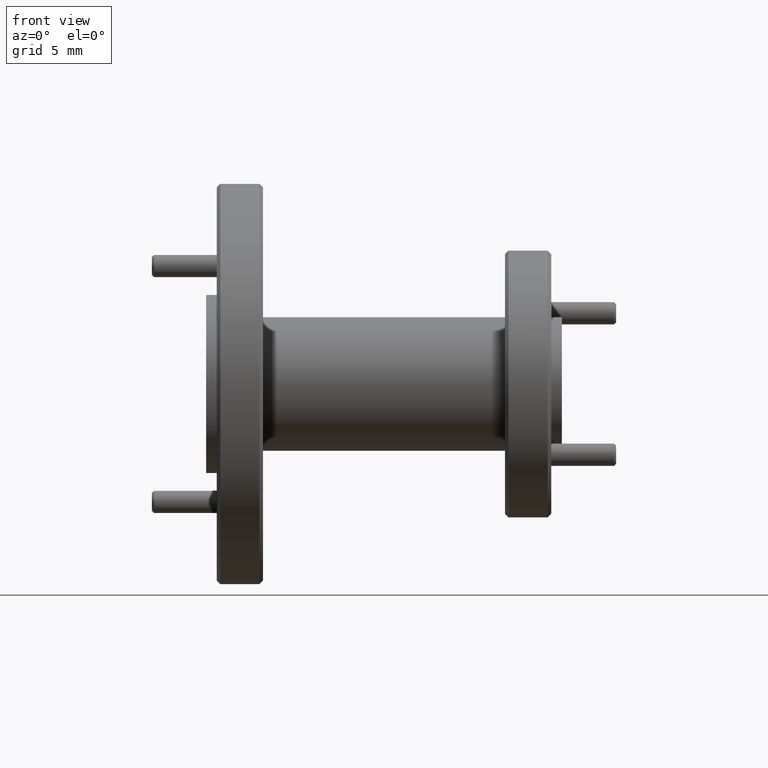
[diagram: clean part render]
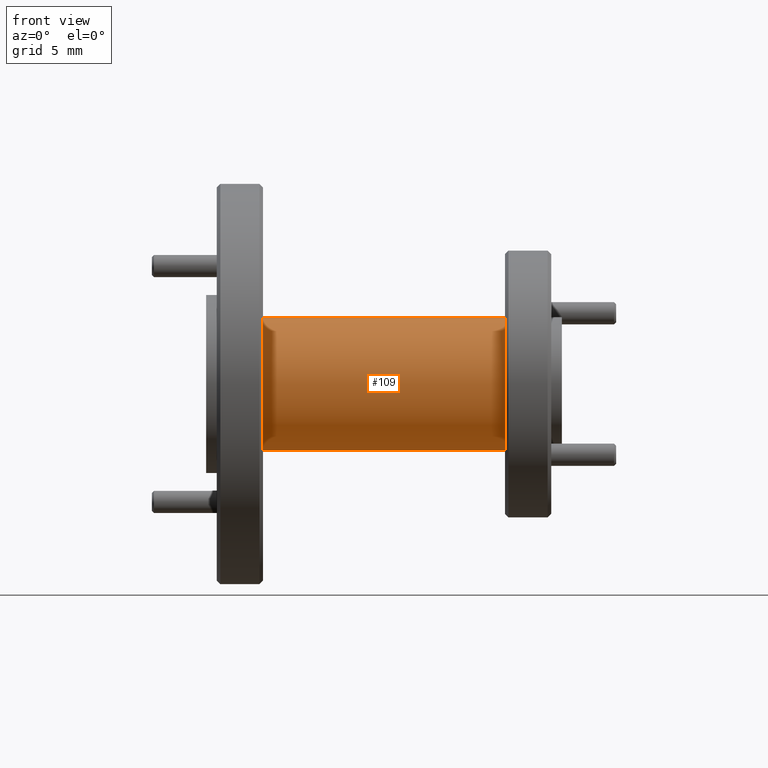
[diagram: same view with one face highlighted and labeled with its STEP entity id]
A machine part, front view. The second image highlights one B-rep face of the part: STEP entity #109.
In plain terms, the highlighted cylindrical surface (partial cylindrical patch) has radius 4.7625 mm, axis along (-1, 0, -0).
Its self-contained STEP definition (entity closure, byte-faithful):
#10 = CARTESIAN_POINT ( 'NONE',  ( -1.560299588133233100, 0.7127532445995203900, 0.7060281580648325500 ) ) ;
#109 = ADVANCED_FACE ( 'NONE', ( #3387 ), #3044, .T. ) ;
#179 = CARTESIAN_POINT ( 'NONE',  ( -2.240299588133232600, 0.7127532445995203900, 0.3310281580648325500 ) ) ;
#193 = EDGE_LOOP ( 'NONE', ( #3201, #2276, #2062, #3828 ) ) ;
#252 = CARTESIAN_POINT ( 'NONE',  ( -1.560299588133233100, 0.7127532445995203900, 0.5185281580648326600 ) ) ;
#392 = DIRECTION ( 'NONE',  ( 0.0000000000000000000, 0.0000000000000000000, 1.000000000000000000 ) ) ;
#477 = VERTEX_POINT ( 'NONE', #10 ) ;
#528 = DIRECTION ( 'NONE',  ( 0.0000000000000000000, 0.0000000000000000000, 1.000000000000000000 ) ) ;
#558 = AXIS2_PLACEMENT_3D ( 'NONE', #252, #819, #528 ) ;
#752 = DIRECTION ( 'NONE',  ( -1.000000000000000000, 1.214504284265894100E-046, -1.479334085402692200E-046 ) ) ;
#819 = DIRECTION ( 'NONE',  ( -1.000000000000000000, 1.214504284265894100E-046, -1.479334085402692200E-046 ) ) ;
#957 = EDGE_CURVE ( 'NONE', #1145, #477, #3435, .T. ) ;
#1145 = VERTEX_POINT ( 'NONE', #2049 ) ;
#1297 = VERTEX_POINT ( 'NONE', #179 ) ;
#1311 = EDGE_CURVE ( 'NONE', #1145, #1297, #2225, .T. ) ;
#1395 = CARTESIAN_POINT ( 'NONE',  ( -2.400299588133232700, 0.7127532445995203900, 0.3310281580648325500 ) ) ;
#1463 = DIRECTION ( 'NONE',  ( -1.000000000000000000, 1.214504284265894100E-046, -1.479334085402692200E-046 ) ) ;
#1543 = AXIS2_PLACEMENT_3D ( 'NONE', #3952, #1463, #2119 ) ;
#1600 = EDGE_CURVE ( 'NONE', #1297, #2785, #3126, .T. ) ;
#1601 = DIRECTION ( 'NONE',  ( -1.000000000000000000, 1.214504284265894100E-046, -1.479334085402692200E-046 ) ) ;
#2049 = CARTESIAN_POINT ( 'NONE',  ( -1.560299588133233100, 0.7127532445995203900, 0.3310281580648326600 ) ) ;
#2062 = ORIENTED_EDGE ( 'NONE', *, *, #3329, .T. ) ;
#2119 = DIRECTION ( 'NONE',  ( 0.0000000000000000000, 0.0000000000000000000, 1.000000000000000000 ) ) ;
#2225 = LINE ( 'NONE', #1395, #2649 ) ;
#2276 = ORIENTED_EDGE ( 'NONE', *, *, #957, .T. ) ;
#2289 = CARTESIAN_POINT ( 'NONE',  ( -2.400299588133232700, 0.7127532445995203900, 0.7060281580648327700 ) ) ;
#2341 = CARTESIAN_POINT ( 'NONE',  ( -2.240299588133232600, 0.7127532445995203900, 0.7060281580648327700 ) ) ;
#2380 = VECTOR ( 'NONE', #752, 39.37007874015748100 ) ;
#2533 = CARTESIAN_POINT ( 'NONE',  ( -2.240299588133232600, 0.7127532445995203900, 0.5185281580648326600 ) ) ;
#2649 = VECTOR ( 'NONE', #3812, 39.37007874015748100 ) ;
#2772 = AXIS2_PLACEMENT_3D ( 'NONE', #2533, #1601, #392 ) ;
#2785 = VERTEX_POINT ( 'NONE', #2341 ) ;
#3044 = CYLINDRICAL_SURFACE ( 'NONE', #1543, 0.1875000000000001100 ) ;
#3126 = CIRCLE ( 'NONE', #2772, 0.1875000000000001100 ) ;
#3200 = LINE ( 'NONE', #2289, #2380 ) ;
#3201 = ORIENTED_EDGE ( 'NONE', *, *, #1311, .F. ) ;
#3329 = EDGE_CURVE ( 'NONE', #477, #2785, #3200, .T. ) ;
#3387 = FACE_OUTER_BOUND ( 'NONE', #193, .T. ) ;
#3435 = CIRCLE ( 'NONE', #558, 0.1874999999999999700 ) ;
#3812 = DIRECTION ( 'NONE',  ( -1.000000000000000000, 1.214504284265894100E-046, -1.479334085402692200E-046 ) ) ;
#3828 = ORIENTED_EDGE ( 'NONE', *, *, #1600, .F. ) ;
#3952 = CARTESIAN_POINT ( 'NONE',  ( -2.400299588133232700, 0.7127532445995203900, 0.5185281580648326600 ) ) ;